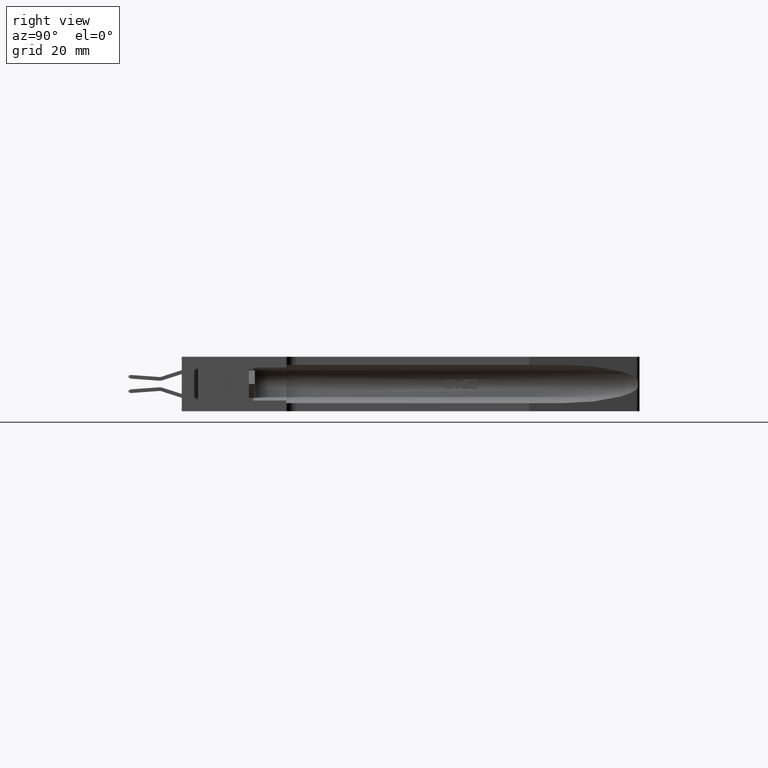
[diagram: clean part render]
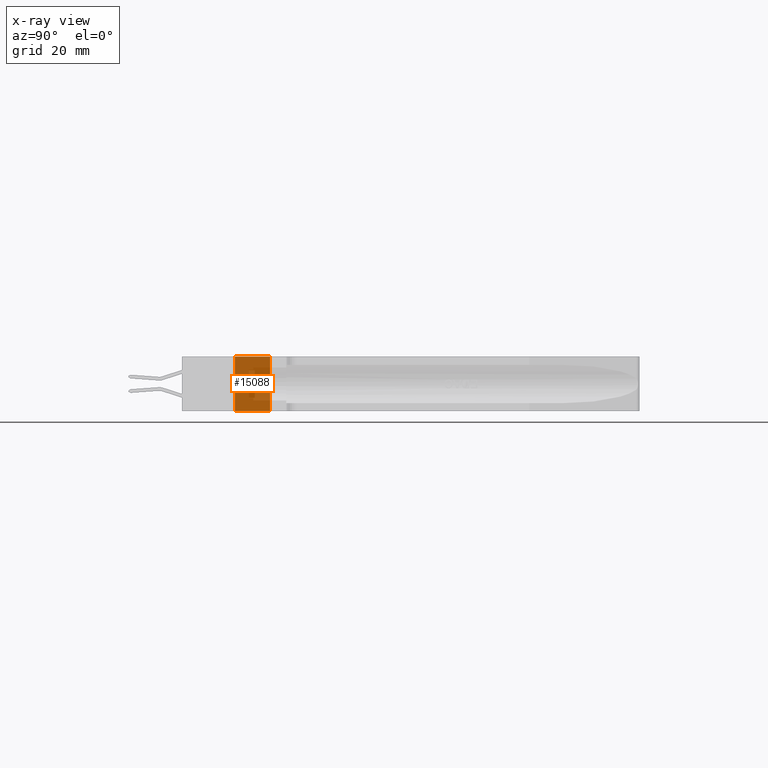
[diagram: x-ray — body ghosted, one internal face saturated and labeled with its STEP entity id]
A machine part, right view, then the same camera in x-ray: the body is ghosted and one INTERNAL B-rep face — a face not visible from any outside direction — is saturated and labeled: STEP entity #15088.
In plain terms, the highlighted planar face has unit normal (1, 0, 0).
Its self-contained STEP definition (entity closure, byte-faithful):
#542 = PLANE ( 'NONE',  #21566 ) ;
#570 = CARTESIAN_POINT ( 'NONE',  ( 0.2874999999999999800, 0.3599999999999999900, 0.0000000000000000000 ) ) ;
#865 = CARTESIAN_POINT ( 'NONE',  ( 0.2874999999999999800, 0.3599999999999999900, 0.0000000000000000000 ) ) ;
#2408 = CARTESIAN_POINT ( 'NONE',  ( 0.2874999999999999800, 0.5999999999999999800, 0.0000000000000000000 ) ) ;
#3675 = EDGE_LOOP ( 'NONE', ( #7269, #14987, #17776, #4934 ) ) ;
#4934 = ORIENTED_EDGE ( 'NONE', *, *, #13501, .T. ) ;
#4977 = DIRECTION ( 'NONE',  ( 1.000000000000000000, 0.0000000000000000000, 0.0000000000000000000 ) ) ;
#5005 = DIRECTION ( 'NONE',  ( 0.0000000000000000000, 0.0000000000000000000, -1.000000000000000000 ) ) ;
#5075 = CARTESIAN_POINT ( 'NONE',  ( 0.2874999999999999800, 0.3599999999999999900, -0.3700000000000001600 ) ) ;
#6918 = VERTEX_POINT ( 'NONE', #2408 ) ;
#7262 = VECTOR ( 'NONE', #9066, 39.37007874015748100 ) ;
#7269 = ORIENTED_EDGE ( 'NONE', *, *, #24236, .T. ) ;
#7592 = CARTESIAN_POINT ( 'NONE',  ( 0.2874999999999999800, 0.3599999999999999900, 0.0000000000000000000 ) ) ;
#8143 = VECTOR ( 'NONE', #20453, 39.37007874015748100 ) ;
#8318 = VERTEX_POINT ( 'NONE', #7592 ) ;
#9066 = DIRECTION ( 'NONE',  ( 0.0000000000000000000, 0.0000000000000000000, -1.000000000000000000 ) ) ;
#10164 = VECTOR ( 'NONE', #5005, 39.37007874015748100 ) ;
#13414 = EDGE_CURVE ( 'NONE', #8318, #22886, #27382, .T. ) ;
#13501 = EDGE_CURVE ( 'NONE', #8318, #6918, #19664, .T. ) ;
#14707 = CARTESIAN_POINT ( 'NONE',  ( 0.2874999999999999800, 0.5999999999999999800, -0.3700000000000001600 ) ) ;
#14987 = ORIENTED_EDGE ( 'NONE', *, *, #21718, .F. ) ;
#15088 = ADVANCED_FACE ( 'NONE', ( #21651 ), #542, .F. ) ;
#15642 = VECTOR ( 'NONE', #20682, 39.37007874015748100 ) ;
#16126 = LINE ( 'NONE', #16326, #15642 ) ;
#16326 = CARTESIAN_POINT ( 'NONE',  ( 0.2874999999999999800, 0.3599999999999999900, -0.3700000000000001600 ) ) ;
#17443 = LINE ( 'NONE', #22024, #7262 ) ;
#17776 = ORIENTED_EDGE ( 'NONE', *, *, #13414, .F. ) ;
#19664 = LINE ( 'NONE', #865, #8143 ) ;
#20249 = DIRECTION ( 'NONE',  ( 0.0000000000000000000, 0.0000000000000000000, -1.000000000000000000 ) ) ;
#20453 = DIRECTION ( 'NONE',  ( -0.0000000000000000000, 1.000000000000000000, -0.0000000000000000000 ) ) ;
#20682 = DIRECTION ( 'NONE',  ( -0.0000000000000000000, 1.000000000000000000, -0.0000000000000000000 ) ) ;
#21253 = VERTEX_POINT ( 'NONE', #14707 ) ;
#21566 = AXIS2_PLACEMENT_3D ( 'NONE', #24473, #4977, #20249 ) ;
#21651 = FACE_OUTER_BOUND ( 'NONE', #3675, .T. ) ;
#21718 = EDGE_CURVE ( 'NONE', #22886, #21253, #16126, .T. ) ;
#22024 = CARTESIAN_POINT ( 'NONE',  ( 0.2874999999999999800, 0.5999999999999999800, 0.0000000000000000000 ) ) ;
#22886 = VERTEX_POINT ( 'NONE', #5075 ) ;
#24236 = EDGE_CURVE ( 'NONE', #6918, #21253, #17443, .T. ) ;
#24473 = CARTESIAN_POINT ( 'NONE',  ( 0.2874999999999999800, 0.3599999999999999900, 0.0000000000000000000 ) ) ;
#27382 = LINE ( 'NONE', #570, #10164 ) ;